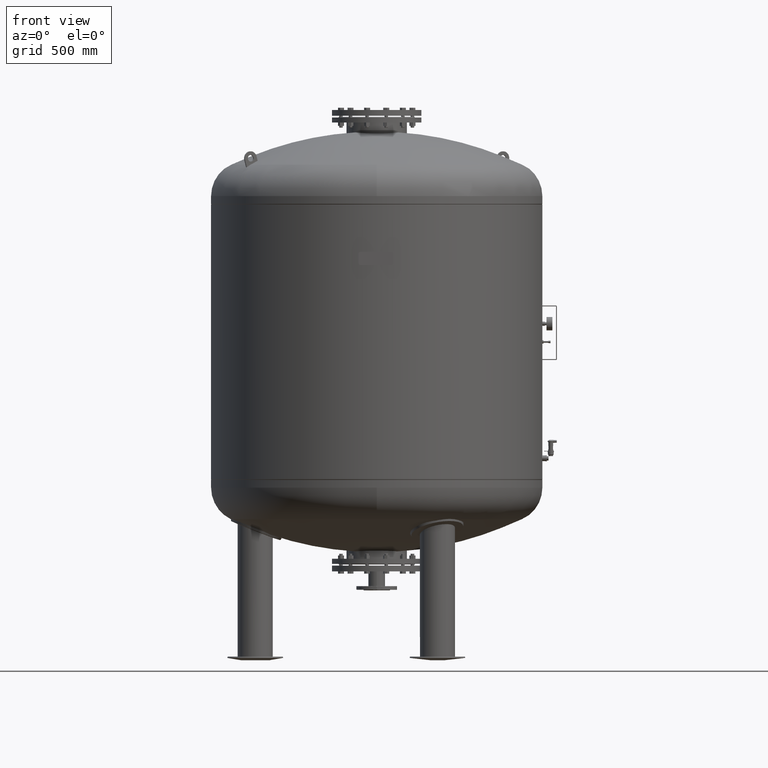
[diagram: clean part render]
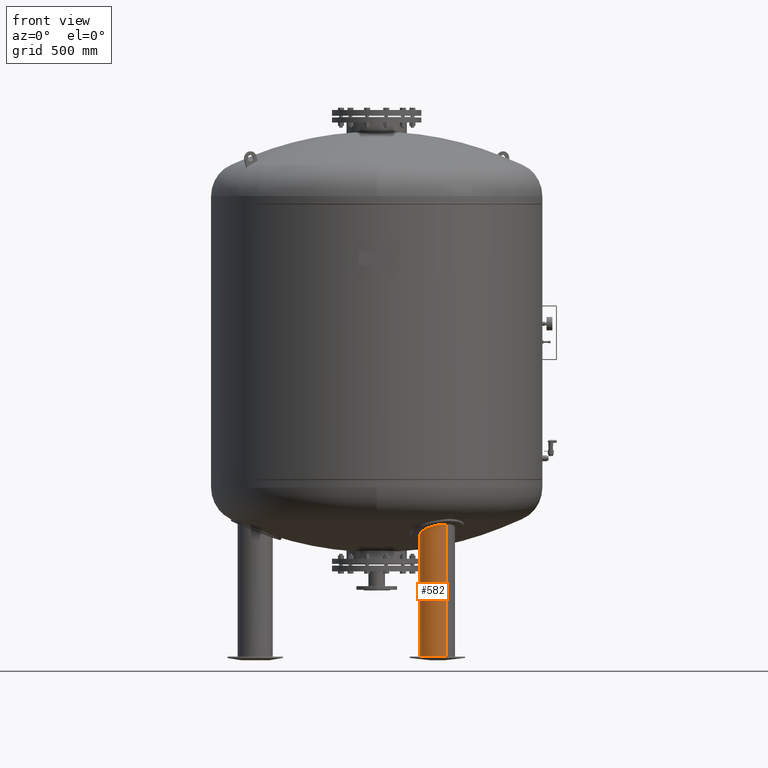
[diagram: same view with one face highlighted and labeled with its STEP entity id]
A machine part, front view. The second image highlights one B-rep face of the part: STEP entity #582.
In plain terms, the highlighted cylindrical surface (edge-blend (fillet) strip) has radius 79.5 mm, axis along (0, 0, -1).
Its self-contained STEP definition (entity closure, byte-faithful):
#172=CARTESIAN_POINT('',(314.749999999999890,-545.162991682304100,11.631170282581067));
#173=VERTEX_POINT('',#172);
#174=CARTESIAN_POINT('',(314.750000000000110,-545.162991682304780,619.974328976416250));
#175=VERTEX_POINT('',#174);
#176=CARTESIAN_POINT('',(314.749999999999890,-545.162991682304100,11.631170282581067));
#177=DIRECTION('',(0.0,0.0,1.0));
#178=VECTOR('',#177,608.343158693835220);
#179=LINE('',#176,#178);
#180=EDGE_CURVE('',#173,#175,#179,.T.);
#182=CARTESIAN_POINT('',(235.249999999999890,-407.464952480578400,11.631170282581067));
#183=VERTEX_POINT('',#182);
#191=CARTESIAN_POINT('',(235.249999999999770,-407.464952480578460,557.801446445446690));
#192=VERTEX_POINT('',#191);
#193=CARTESIAN_POINT('',(235.249999999999890,-407.464952480578400,11.631170282581067));
#194=DIRECTION('',(0.0,0.0,1.0));
#195=VECTOR('',#194,546.170276162865660);
#196=LINE('',#193,#195);
#197=EDGE_CURVE('',#183,#192,#196,.T.);
#279=CARTESIAN_POINT('',(205.783482184925790,-515.420540091886100,588.259208461118190));
#280=VERTEX_POINT('',#279);
#281=CARTESIAN_POINT('',(205.783482184925790,-515.420540091886100,588.259208461118190));
#282=CARTESIAN_POINT('',(201.426111573967380,-507.708228941500070,584.797146556692040));
#283=CARTESIAN_POINT('',(198.366555777918360,-499.283486312880710,581.360502151041940));
#284=CARTESIAN_POINT('',(194.860951505136140,-479.925573561073750,574.174236989335670));
#285=CARTESIAN_POINT('',(195.082291216989570,-468.965119054899500,570.549958778381670));
#286=CARTESIAN_POINT('',(199.884482817816380,-448.359184238433670,564.600364334074580));
#287=CARTESIAN_POINT('',(204.104772989114110,-438.859336090417740,562.252334812652180));
#288=CARTESIAN_POINT('',(215.836268519620400,-422.302850190856590,559.003880738072780));
#289=CARTESIAN_POINT('',(223.022492172788330,-415.336604423659480,558.070588206412370));
#290=CARTESIAN_POINT('',(232.640314101676840,-409.021872087655820,557.818088260262240));
#291=CARTESIAN_POINT('',(233.935185787180670,-408.224060820283910,557.801446445446690));
#292=CARTESIAN_POINT('',(235.249999999999770,-407.464952480578460,557.801446445446690));
#293=B_SPLINE_CURVE_WITH_KNOTS('',3,(#281,#282,#283,#284,#285,#286,#287,#288,#289,#290,#291,#292),.UNSPECIFIED.,.F.,.U.,(4,2,2,2,2,4),(13.058196146459988,15.908544671985489,19.326182717890447,22.493256912797680,25.489178793934588,25.946274642103887),.UNSPECIFIED.);
#294=EDGE_CURVE('',#280,#192,#293,.T.);
#545=CARTESIAN_POINT('',(314.749999999999770,-545.162991682304210,619.974328976416470));
#546=CARTESIAN_POINT('',(306.442909245206520,-549.959092765766400,619.974328976416020));
#547=CARTESIAN_POINT('',(297.378552472938000,-553.188852139110510,619.280247607236110));
#548=CARTESIAN_POINT('',(278.439221662717100,-556.329116497824770,616.585819491894090));
#549=CARTESIAN_POINT('',(268.779055016763780,-556.134967740473370,614.592514188904490));
#550=CARTESIAN_POINT('',(249.549274365694880,-552.308019648920090,609.453155597640030));
#551=CARTESIAN_POINT('',(240.209973609872830,-548.478270259849300,606.286372499794770));
#552=CARTESIAN_POINT('',(222.915168943893090,-537.320267391746820,599.055880090259170));
#553=CARTESIAN_POINT('',(215.249135725733570,-529.808676421816360,594.989155554557560));
#554=CARTESIAN_POINT('',(208.048608236553010,-519.240728592011920,589.995750597807050));
#555=CARTESIAN_POINT('',(206.875299473535530,-517.352997851607600,589.126690109794940));
#556=CARTESIAN_POINT('',(205.783482184925790,-515.420540091886100,588.259208461118190));
#557=B_SPLINE_CURVE_WITH_KNOTS('',3,(#545,#546,#547,#548,#549,#550,#551,#552,#553,#554,#555,#556),.UNSPECIFIED.,.F.,.U.,(4,2,2,2,2,4),(0.0,2.877660650077480,5.813761654146234,8.951189755024860,12.343990246483170,13.058196146459988),.UNSPECIFIED.);
#558=EDGE_CURVE('',#175,#280,#557,.T.);
#564=CARTESIAN_POINT('',(274.999999999999890,-476.313972081441250,15.815585141290533));
#565=DIRECTION('',(1.590863E-016,9.184851E-017,-1.0));
#566=DIRECTION('',(0.500000000000000,-0.866025403784439,0.0));
#567=AXIS2_PLACEMENT_3D('',#564,#565,#566);
#568=CYLINDRICAL_SURFACE('',#567,79.500000000000000);
#569=ORIENTED_EDGE('',*,*,#180,.T.);
#570=ORIENTED_EDGE('',*,*,#558,.T.);
#571=ORIENTED_EDGE('',*,*,#294,.T.);
#572=ORIENTED_EDGE('',*,*,#197,.F.);
#573=CARTESIAN_POINT('',(274.999999999999890,-476.313972081441250,11.631170282581067));
#574=DIRECTION('',(0.0,0.0,-1.000000000000000));
#575=DIRECTION('',(0.500000000000000,-0.866025403784439,0.0));
#576=AXIS2_PLACEMENT_3D('',#573,#574,#575);
#577=CIRCLE('',#576,79.500000000000000);
#578=EDGE_CURVE('',#173,#183,#577,.T.);
#579=ORIENTED_EDGE('',*,*,#578,.F.);
#580=EDGE_LOOP('',(#569,#570,#571,#572,#579));
#581=FACE_OUTER_BOUND('',#580,.T.);
#582=ADVANCED_FACE('',(#581),#568,.T.);